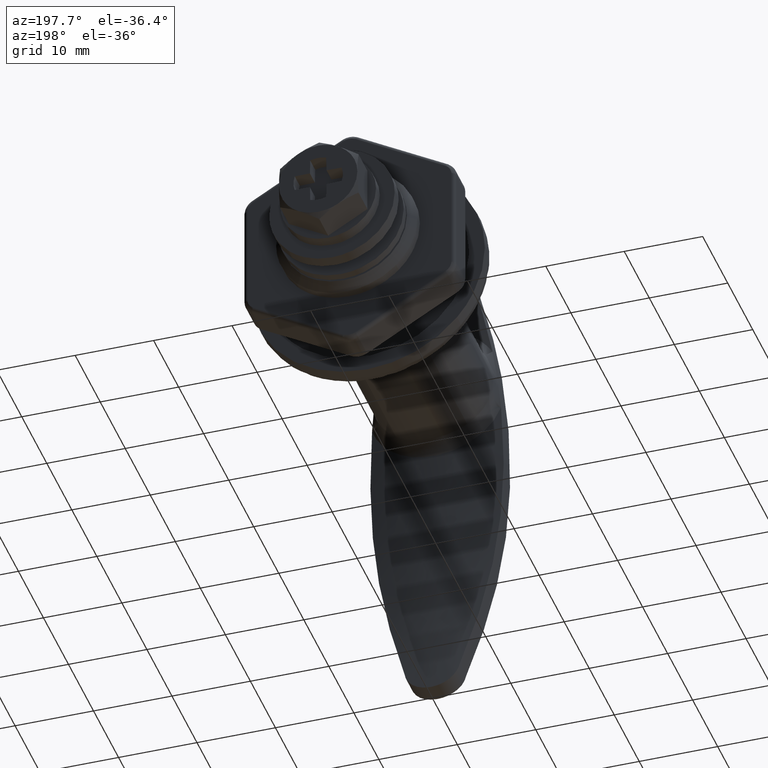
[diagram: clean part render]
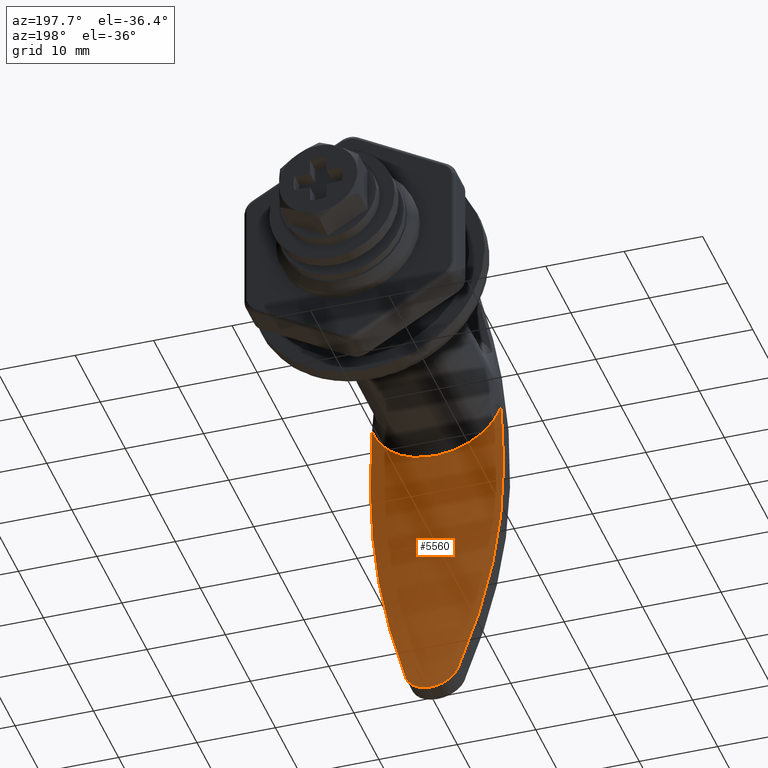
[diagram: same view with one face highlighted and labeled with its STEP entity id]
A machine part, auxiliary view. The second image highlights one B-rep face of the part: STEP entity #5560.
In plain terms, the highlighted face is a freeform B-spline surface patch.
Its self-contained STEP definition (entity closure, byte-faithful):
#4161=CARTESIAN_POINT('',(-21.699823921978400,8.227267373672110,-3.141151808530590));
#4162=VERTEX_POINT('',#4161);
#4315=CARTESIAN_POINT('',(-21.703888726724099,-8.227188666198821,-3.140055158893455));
#4316=VERTEX_POINT('',#4315);
#4554=CARTESIAN_POINT('',(-21.699823921978449,8.227267373672119,-3.141151808530590));
#4555=CARTESIAN_POINT('',(-21.680611249483061,8.073428696596453,-3.569523830428588));
#4556=CARTESIAN_POINT('',(-21.655073627499569,7.890358060154963,-3.981941489845851));
#4557=CARTESIAN_POINT('',(-21.609454813287119,7.572337257551590,-4.577939363114245));
#4558=CARTESIAN_POINT('',(-21.593029977201489,7.459079409918290,-4.772774912557951));
#4559=CARTESIAN_POINT('',(-21.566834947981441,7.278123077215131,-5.059202542891265));
#4560=CARTESIAN_POINT('',(-21.557843652998731,7.215957374652362,-5.153706440320076));
#4561=CARTESIAN_POINT('',(-21.539387414444370,7.087874633069710,-5.340743921394807));
#4562=CARTESIAN_POINT('',(-21.529933460062960,7.022032032458240,-5.433153814105079));
#4563=CARTESIAN_POINT('',(-21.481959590343351,6.685829353690933,-5.886941784512151));
#4564=CARTESIAN_POINT('',(-21.441087755556090,6.392903747375701,-6.226227293122824));
#4565=CARTESIAN_POINT('',(-21.357942809344468,5.759499834566553,-6.858130592849295));
#4566=CARTESIAN_POINT('',(-21.315655073990431,5.419035909373363,-7.150760582506216));
#4567=CARTESIAN_POINT('',(-21.253836300319659,4.870350888578264,-7.552771170237676));
#4568=CARTESIAN_POINT('',(-21.233738230702699,4.683164438559833,-7.679052094808780));
#4569=CARTESIAN_POINT('',(-21.195065192098749,4.301335143071097,-7.915810754249838));
#4570=CARTESIAN_POINT('',(-21.176471682352091,4.106531443766038,-8.026405813823857));
#4571=CARTESIAN_POINT('',(-21.123488069743289,3.510461770202969,-8.334952605737460));
#4572=CARTESIAN_POINT('',(-21.091890944644650,3.097610315888059,-8.509813970420355));
#4573=CARTESIAN_POINT('',(-21.052334767889580,2.453904704769653,-8.723752140839135));
#4574=CARTESIAN_POINT('',(-21.040435534762530,2.234548195975090,-8.787076234180903));
#4575=CARTESIAN_POINT('',(-21.019946354668448,1.794644228178466,-8.895132194883230));
#4576=CARTESIAN_POINT('',(-21.011301818593580,1.573368223340092,-8.940163657229340));
#4577=CARTESIAN_POINT('',(-20.990396401305869,0.905597319092734,-9.048517111864578));
#4578=CARTESIAN_POINT('',(-20.983166815313758,0.455176369363161,-9.085263198338812));
#4579=CARTESIAN_POINT('',(-20.983200668732909,-0.114620958827383,-9.085241595128460));
#4580=CARTESIAN_POINT('',(-20.983660704831490,-0.228498560136978,-9.082926394405213));
#4581=CARTESIAN_POINT('',(-20.985483194989222,-0.456090382754759,-9.073683643992386));
#4582=CARTESIAN_POINT('',(-20.986848661924409,-0.569968684526843,-9.066740710900231));
#4583=CARTESIAN_POINT('',(-20.992266162426748,-0.909922110330443,-9.039105181661775));
#4584=CARTESIAN_POINT('',(-20.997631461491409,-1.134266639618404,-9.011656440384197));
#4585=CARTESIAN_POINT('',(-21.018653261390710,-1.800658988386934,-8.903119574516360));
#4586=CARTESIAN_POINT('',(-21.039240046901639,-2.236101912583352,-8.795990001992360));
#4587=CARTESIAN_POINT('',(-21.078609751420210,-2.876256283869158,-8.583771643149545));
#4588=CARTESIAN_POINT('',(-21.093147161046979,-3.087463526876880,-8.504407110820393));
#4589=CARTESIAN_POINT('',(-21.116889456160798,-3.400950159079917,-8.372151619529053));
#4590=CARTESIAN_POINT('',(-21.125123775268989,-3.504834193367147,-8.325872425448457));
#4591=CARTESIAN_POINT('',(-21.142041800367181,-3.709618738741761,-8.229767729266692));
#4592=CARTESIAN_POINT('',(-21.150743202734279,-3.810758635604862,-8.179844184025482));
#4593=CARTESIAN_POINT('',(-21.195326979615661,-4.310324744495564,-7.921045012169326));
#4594=CARTESIAN_POINT('',(-21.234436967769160,-4.690460486955159,-7.684791823337654));
#4595=CARTESIAN_POINT('',(-21.295745202056580,-5.232470631985811,-7.287842384084086));
#4596=CARTESIAN_POINT('',(-21.316622480869679,-5.408420200109004,-7.148398178912236));
#4597=CARTESIAN_POINT('',(-21.358829394202939,-5.750804847900678,-6.855074141148950));
#4598=CARTESIAN_POINT('',(-21.380230749479860,-5.917751075358367,-6.700612608033075));
#4599=CARTESIAN_POINT('',(-21.443434974214021,-6.396559488059175,-6.222707696279251));
#4600=CARTESIAN_POINT('',(-21.484489520680281,-6.688738663089266,-5.883234772155790));
#4601=CARTESIAN_POINT('',(-21.561040860972891,-7.221401091460146,-5.163994385160053));
#4602=CARTESIAN_POINT('',(-21.596551381111102,-7.461878987374749,-4.784224284760697));
#4603=CARTESIAN_POINT('',(-21.643031922898579,-7.782807903253036,-4.183286591679311));
#4604=CARTESIAN_POINT('',(-21.657263650052940,-7.882248990370137,-3.979359987535965));
#4605=CARTESIAN_POINT('',(-21.682827151334699,-8.066008870111967,-3.564839650869869));
#4606=CARTESIAN_POINT('',(-21.694161032346500,-8.150335902900892,-3.354259590128284));
#4607=CARTESIAN_POINT('',(-21.703888726724099,-8.227188666198821,-3.140055158893455));
#4608=B_SPLINE_CURVE_WITH_KNOTS('',3,(#4554,#4555,#4556,#4557,#4558,#4559,#4560,#4561,#4562,#4563,#4564,#4565,#4566,#4567,#4568,#4569,#4570,#4571,#4572,#4573,#4574,#4575,#4576,#4577,#4578,#4579,#4580,#4581,#4582,#4583,#4584,#4585,#4586,#4587,#4588,#4589,#4590,#4591,#4592,#4593,#4594,#4595,#4596,#4597,#4598,#4599,#4600,#4601,#4602,#4603,#4604,#4605,#4606,#4607),.UNSPECIFIED.,.F.,.U.,(4,2,2,2,2,2,2,2,2,2,2,2,2,2,2,2,2,2,2,2,2,2,2,2,2,2,4),(0.0,0.062500000000001,0.093750000000001,0.109375000000001,0.125000000000001,0.187500000000001,0.250000000000001,0.281250000000001,0.312500000000002,0.375000000000002,0.406250000000002,0.437500000000002,0.500000000000002,0.515625000000002,0.531250000000002,0.562500000000002,0.625000000000002,0.656250000000002,0.671875000000002,0.687500000000002,0.750000000000001,0.781250000000001,0.812500000000001,0.875000000000001,0.937500000000000,0.968750000000000,1.0),.UNSPECIFIED.);
#4609=EDGE_CURVE('',#4162,#4316,#4608,.T.);
#5003=CARTESIAN_POINT('',(-19.492136319288051,0.059918407206738,-45.000099658016197));
#5004=VERTEX_POINT('',#5003);
#5005=CARTESIAN_POINT('',(-19.916182251279050,3.527651446527305,-41.974104227996548));
#5006=VERTEX_POINT('',#5005);
#5007=CARTESIAN_POINT('',(-19.492136319288051,0.059918407206738,-45.000099658016197));
#5008=CARTESIAN_POINT('',(-19.492136319288051,0.272031436848899,-45.000099658016211));
#5009=CARTESIAN_POINT('',(-19.495023170274571,0.480839681718385,-44.980978510266837));
#5010=CARTESIAN_POINT('',(-19.503206207517920,0.789315084268253,-44.924848235378008));
#5011=CARTESIAN_POINT('',(-19.506574410541749,0.891345832255992,-44.901534235810892));
#5012=CARTESIAN_POINT('',(-19.512531228179721,1.043184502650775,-44.859555464748851));
#5013=CARTESIAN_POINT('',(-19.514667710293519,1.093595850866269,-44.844392823605837));
#5014=CARTESIAN_POINT('',(-19.519235707714309,1.194009002450185,-44.811688947830589));
#5015=CARTESIAN_POINT('',(-19.521671602027499,1.244081921335422,-44.794114897214598));
#5016=CARTESIAN_POINT('',(-19.534444019921740,1.490928817435897,-44.701151338635583));
#5017=CARTESIAN_POINT('',(-19.546584373115369,1.679084105341896,-44.610065913855131));
#5018=CARTESIAN_POINT('',(-19.567471599135640,1.947777211197535,-44.449145974892218));
#5019=CARTESIAN_POINT('',(-19.574890444984629,2.035070582167876,-44.391432580268990));
#5020=CARTESIAN_POINT('',(-19.590745432415229,2.205017183206248,-44.267694035110360));
#5021=CARTESIAN_POINT('',(-19.599212477902910,2.287873417402480,-44.201432295260503));
#5022=CARTESIAN_POINT('',(-19.625884655984589,2.524556076851055,-43.994002053050153));
#5023=CARTESIAN_POINT('',(-19.645489865946800,2.668204704765957,-43.843216648639142));
#5024=CARTESIAN_POINT('',(-19.678712928835392,2.862840784170648,-43.598771309146592));
#5025=CARTESIAN_POINT('',(-19.690426792260499,2.924226607716851,-43.514227399908911));
#5026=CARTESIAN_POINT('',(-19.709067954510939,3.010929987905767,-43.382710614531170));
#5027=CARTESIAN_POINT('',(-19.715464661104800,3.038945057814815,-43.338054627492937));
#5028=CARTESIAN_POINT('',(-19.728487095043661,3.092619040071872,-43.248069900196981));
#5029=CARTESIAN_POINT('',(-19.735128122023749,3.118352629582722,-43.202632526323640));
#5030=CARTESIAN_POINT('',(-19.768946878377790,3.241602582948890,-42.973256993923030));
#5031=CARTESIAN_POINT('',(-19.798089127593389,3.322993604337147,-42.782825417538078));
#5032=CARTESIAN_POINT('',(-19.842853883914952,3.419600292859991,-42.486611713538728));
#5033=CARTESIAN_POINT('',(-19.857939173483899,3.447554067674552,-42.385997399609103));
#5034=CARTESIAN_POINT('',(-19.887710365933081,3.494546151407000,-42.181429538321566));
#5035=CARTESIAN_POINT('',(-19.902278178042138,3.513417446075440,-42.078243417612732));
#5036=CARTESIAN_POINT('',(-19.916182251279050,3.527651446527305,-41.974104227996548));
#5037=B_SPLINE_CURVE_WITH_KNOTS('',3,(#5007,#5008,#5009,#5010,#5011,#5012,#5013,#5014,#5015,#5016,#5017,#5018,#5019,#5020,#5021,#5022,#5023,#5024,#5025,#5026,#5027,#5028,#5029,#5030,#5031,#5032,#5033,#5034,#5035,#5036),.UNSPECIFIED.,.F.,.U.,(4,2,2,2,2,2,2,2,2,2,2,2,2,2,4),(0.0,0.124999999999995,0.187499999999992,0.218749999999991,0.249999999999990,0.374999999999987,0.437499999999986,0.499999999999984,0.624999999999980,0.687499999999979,0.718749999999980,0.749999999999980,0.874999999999992,0.937499999999996,1.0),.UNSPECIFIED.);
#5038=EDGE_CURVE('',#5004,#5006,#5037,.T.);
#5141=CARTESIAN_POINT('',(-19.492136319288051,-0.059918407196244,-45.000099658016197));
#5142=VERTEX_POINT('',#5141);
#5148=CARTESIAN_POINT('',(-19.916182070984949,-3.527651446522955,-41.974104228028352));
#5149=VERTEX_POINT('',#5148);
#5150=CARTESIAN_POINT('',(-19.916182070984949,-3.527651446522960,-41.974104228028352));
#5151=CARTESIAN_POINT('',(-19.888364039138601,-3.499173398330393,-42.182456115525532));
#5152=CARTESIAN_POINT('',(-19.858239839454601,-3.452574132737543,-42.384756097371152));
#5153=CARTESIAN_POINT('',(-19.813619617827520,-3.356622867352249,-42.680077344371760));
#5154=CARTESIAN_POINT('',(-19.798830866857319,-3.320265857741503,-42.777151711989042));
#5155=CARTESIAN_POINT('',(-19.777120248826201,-3.259048691339734,-42.920726718292407));
#5156=CARTESIAN_POINT('',(-19.769960688856980,-3.237527620920044,-42.968244869199047));
#5157=CARTESIAN_POINT('',(-19.755836130065340,-3.192212987299933,-43.062593511400173));
#5158=CARTESIAN_POINT('',(-19.748854576412679,-3.168355465879036,-43.109537143052137));
#5159=CARTESIAN_POINT('',(-19.714793091136489,-3.044335112735298,-43.340529981852171));
#5160=CARTESIAN_POINT('',(-19.690217295390859,-2.929856817160826,-43.514210126205363));
#5161=CARTESIAN_POINT('',(-19.657003629552062,-2.735844281131220,-43.758459209773811));
#5162=CARTESIAN_POINT('',(-19.646525289591111,-2.667436520418876,-43.837145722299702));
#5163=CARTESIAN_POINT('',(-19.631577198524461,-2.559101678477446,-43.950975445962470));
#5164=CARTESIAN_POINT('',(-19.626722558082591,-2.522034835338196,-43.988217629598772));
#5165=CARTESIAN_POINT('',(-19.617249322046611,-2.445953403278354,-44.061269043696683));
#5166=CARTESIAN_POINT('',(-19.612641897203019,-2.407019548809334,-44.096992142991951));
#5167=CARTESIAN_POINT('',(-19.590362347126149,-2.209434759024830,-44.270254335606403));
#5168=CARTESIAN_POINT('',(-19.574732679494449,-2.040754356450213,-44.393176878299187));
#5169=CARTESIAN_POINT('',(-19.553803985365210,-1.772165971979697,-44.554457795294333));
#5170=CARTESIAN_POINT('',(-19.547258742497210,-1.680026052466746,-44.604345312041573));
#5171=CARTESIAN_POINT('',(-19.538094987975679,-1.537796744229523,-44.673212264698464));
#5172=CARTESIAN_POINT('',(-19.535143271991910,-1.489594857547685,-44.695223001489381));
#5173=CARTESIAN_POINT('',(-19.529505471550468,-1.392457866076785,-44.736938807441753));
#5174=CARTESIAN_POINT('',(-19.526822217702431,-1.343586609341421,-44.756624289626913));
#5175=CARTESIAN_POINT('',(-19.514091683564988,-1.097742533493865,-44.849293027380163));
#5176=CARTESIAN_POINT('',(-19.506078012898740,-0.896342392642829,-44.905138834994489));
#5177=CARTESIAN_POINT('',(-19.497828843050460,-0.587203725997328,-44.961738635641531));
#5178=CARTESIAN_POINT('',(-19.495712405326369,-0.482977426057533,-44.976050194231128));
#5179=CARTESIAN_POINT('',(-19.492860365016579,-0.272085370605094,-44.995267231985437));
#5180=CARTESIAN_POINT('',(-19.492136319288051,-0.166001076424936,-45.000099658016211));
#5181=CARTESIAN_POINT('',(-19.492136319288051,-0.059918407196244,-45.000099658016197));
#5182=B_SPLINE_CURVE_WITH_KNOTS('',3,(#5150,#5151,#5152,#5153,#5154,#5155,#5156,#5157,#5158,#5159,#5160,#5161,#5162,#5163,#5164,#5165,#5166,#5167,#5168,#5169,#5170,#5171,#5172,#5173,#5174,#5175,#5176,#5177,#5178,#5179,#5180,#5181),.UNSPECIFIED.,.F.,.U.,(4,2,2,2,2,2,2,2,2,2,2,2,2,2,2,4),(0.0,0.125000000000003,0.187500000000003,0.218750000000004,0.250000000000006,0.375000000000004,0.437500000000004,0.468750000000003,0.500000000000003,0.625000000000003,0.687500000000004,0.718750000000004,0.750000000000004,0.875000000000002,0.937500000000001,1.0),.UNSPECIFIED.);
#5183=EDGE_CURVE('',#5149,#5142,#5182,.T.);
#5463=CARTESIAN_POINT('',(-21.699823921978400,8.227267373672110,-3.141151808530590));
#5464=CARTESIAN_POINT('',(-21.805885002986699,8.406043279805147,-5.632258728276281));
#5465=CARTESIAN_POINT('',(-21.994836567394270,8.674811757897412,-13.028888411518411));
#5466=CARTESIAN_POINT('',(-21.711658832109102,7.904620147357620,-24.445709925409901));
#5467=CARTESIAN_POINT('',(-20.851672629883101,5.694440284739700,-34.441149037106349));
#5468=CARTESIAN_POINT('',(-20.194683638603351,4.194723965619880,-39.863768447673152));
#5469=CARTESIAN_POINT('',(-19.994867854429369,3.629047319648921,-41.382919528088379));
#5470=CARTESIAN_POINT('',(-19.933642963830469,3.545526481138530,-41.843326403092803));
#5471=CARTESIAN_POINT('',(-19.916182251279061,3.527651446527306,-41.974104227996548));
#5472=B_SPLINE_CURVE_WITH_KNOTS('',3,(#5463,#5464,#5465,#5466,#5467,#5468,#5469,#5470,#5471),.UNSPECIFIED.,.F.,.U.,(4,1,1,1,1,1,4),(0.355836555013322,0.470929599459215,0.697667441982932,0.883513564293831,0.932384456043438,0.947543075388542,0.953553047188240),.UNSPECIFIED.);
#5473=EDGE_CURVE('',#4162,#5006,#5472,.T.);
#5496=CARTESIAN_POINT('',(-21.605551769884801,-8.056496570110978,-1.050547352593680));
#5497=CARTESIAN_POINT('',(-20.549825668733121,-2.737502893064804,-1.050547352593679));
#5498=CARTESIAN_POINT('',(-20.548230744687071,2.736897299313591,-1.050547352593679));
#5499=CARTESIAN_POINT('',(-21.600854839535749,8.056496570110943,-1.050547352593680));
#5500=CARTESIAN_POINT('',(-21.771279868339079,-8.348608515500525,-4.239020018584036));
#5501=CARTESIAN_POINT('',(-20.633209951295239,-2.840990528138666,-4.239020018584037));
#5502=CARTESIAN_POINT('',(-20.631753560965329,2.840437535734217,-4.239020018584037));
#5503=CARTESIAN_POINT('',(-21.766990909277009,8.348608515500491,-4.239020018584036));
#5504=CARTESIAN_POINT('',(-22.008970225667820,-8.721801323437658,-12.332345531216911));
#5505=CARTESIAN_POINT('',(-20.757077608945671,-2.974478492301181,-12.332345531216911));
#5506=CARTESIAN_POINT('',(-20.758144896139900,2.974883741978992,-12.332345531216911));
#5507=CARTESIAN_POINT('',(-22.012113305506780,8.721801323437758,-12.332345531216911));
#5508=CARTESIAN_POINT('',(-21.712491479204701,-7.904620147357551,-24.445709925409901));
#5509=CARTESIAN_POINT('',(-20.609302501464398,-2.693342784993015,-24.445709925409901));
#5510=CARTESIAN_POINT('',(-20.609019761722450,2.693235428519935,-24.445709925409901));
#5511=CARTESIAN_POINT('',(-21.711658832109102,7.904620147357620,-24.445709925409901));
#5512=CARTESIAN_POINT('',(-20.851623193472651,-5.694440284739771,-34.441149037106349));
#5513=CARTESIAN_POINT('',(-20.164883923269450,-1.927035201248420,-34.441149037106349));
#5514=CARTESIAN_POINT('',(-20.164900710258848,1.927041575279300,-34.441149037106349));
#5515=CARTESIAN_POINT('',(-20.851672629883101,5.694440284739700,-34.441149037106349));
#5516=CARTESIAN_POINT('',(-20.194685120626652,-4.194723965619890,-39.863768447673152));
#5517=CARTESIAN_POINT('',(-19.848347318994900,-1.409131301376524,-39.863768447673152));
#5518=CARTESIAN_POINT('',(-19.848346815748201,1.409131110293620,-39.863768447673152));
#5519=CARTESIAN_POINT('',(-20.194683638603351,4.194723965619880,-39.863768447673152));
#5520=CARTESIAN_POINT('',(-19.862362783566251,-3.253929124980885,-42.390316978154949));
#5521=CARTESIAN_POINT('',(-19.667111993185749,-1.088152244694204,-42.390316978154949));
#5522=CARTESIAN_POINT('',(-19.667112286025599,1.088152355885282,-42.390316978154949));
#5523=CARTESIAN_POINT('',(-19.862363645957299,3.253929124980890,-42.390316978154949));
#5524=CARTESIAN_POINT('',(-19.660964852562302,-3.600003945479100,-43.869765651152200));
#5525=CARTESIAN_POINT('',(-19.660967078550598,-1.200001275147854,-43.869765651152200));
#5526=CARTESIAN_POINT('',(-19.660967078550598,1.200001275151408,-43.869765651152200));
#5527=CARTESIAN_POINT('',(-19.660964852562302,3.600003945479100,-43.869765651152200));
#5528=CARTESIAN_POINT('',(-19.492141280987649,-3.600000000000000,-45.000066438678900));
#5529=CARTESIAN_POINT('',(-19.492141280987649,-1.200000000000000,-45.000066438678900));
#5530=CARTESIAN_POINT('',(-19.492141280987649,1.200000000000000,-45.000066438678900));
#5531=CARTESIAN_POINT('',(-19.492141280987649,3.600000000000000,-45.000066438678900));
#5532=CARTESIAN_POINT('',(-19.492136319288051,-3.600000000000000,-45.000099658016197));
#5533=CARTESIAN_POINT('',(-19.492136319288051,-1.200000000000000,-45.000099658016197));
#5534=CARTESIAN_POINT('',(-19.492136319288051,1.200000000000000,-45.000099658016197));
#5535=CARTESIAN_POINT('',(-19.492136319288051,3.600000000000000,-45.000099658016197));
#5536=B_SPLINE_SURFACE_WITH_KNOTS('',3,3,((#5496,#5500,#5504,#5508,#5512,#5516,#5520,#5524,#5528,#5532),(#5497,#5501,#5505,#5509,#5513,#5517,#5521,#5525,#5529,#5533),(#5498,#5502,#5506,#5510,#5514,#5518,#5522,#5526,#5530,#5534),(#5499,#5503,#5507,#5511,#5515,#5519,#5523,#5527,#5531,#5535)),.UNSPECIFIED.,.F.,.F.,.U.,(4,4),(4,1,1,1,1,1,1,4),(0.0,17.176083972474320),(22.317627950572970,32.474164808657683,48.109457376655087,60.924955939294847,64.294974292027959,65.340275975018145,68.957472158367992,68.957578470219133),.UNSPECIFIED.);
#5537=ORIENTED_EDGE('',*,*,#5473,.F.);
#5538=ORIENTED_EDGE('',*,*,#4609,.T.);
#5539=CARTESIAN_POINT('',(-21.703888726724099,-8.227188666198821,-3.140055158893455));
#5540=CARTESIAN_POINT('',(-21.808951215128669,-8.406016719625528,-5.631527831731115));
#5541=CARTESIAN_POINT('',(-21.991931043405419,-8.674836408863689,-13.028523001561471));
#5542=CARTESIAN_POINT('',(-21.712491479204701,-7.904620147357551,-24.445709925409901));
#5543=CARTESIAN_POINT('',(-20.851623193472651,-5.694440284739771,-34.441149037106349));
#5544=CARTESIAN_POINT('',(-20.194685120626652,-4.194723965619890,-39.863768447673152));
#5545=CARTESIAN_POINT('',(-19.994867926812979,-3.629047319644988,-41.382919528098952));
#5546=CARTESIAN_POINT('',(-19.933642828081830,-3.545526481134687,-41.843326403113977));
#5547=CARTESIAN_POINT('',(-19.916182070984949,-3.527651446522960,-41.974104228028352));
#5548=B_SPLINE_CURVE_WITH_KNOTS('',3,(#5539,#5540,#5541,#5542,#5543,#5544,#5545,#5546,#5547),.UNSPECIFIED.,.F.,.U.,(4,1,1,1,1,1,4),(0.355819666036561,0.470929599459215,0.697667441982932,0.883513564293831,0.932384456043438,0.947543075388542,0.953553047188727),.UNSPECIFIED.);
#5549=EDGE_CURVE('',#4316,#5149,#5548,.T.);
#5550=ORIENTED_EDGE('',*,*,#5549,.T.);
#5551=ORIENTED_EDGE('',*,*,#5183,.T.);
#5552=CARTESIAN_POINT('',(-19.492136319288051,-0.059918407196244,-45.000099658016197));
#5553=CARTESIAN_POINT('',(-19.492136319288051,0.059918407206738,-45.000099658016197));
#5554=QUASI_UNIFORM_CURVE('',1,(#5552,#5553),.UNSPECIFIED.,.F.,.U.);
#5555=EDGE_CURVE('',#5142,#5004,#5554,.T.);
#5556=ORIENTED_EDGE('',*,*,#5555,.T.);
#5557=ORIENTED_EDGE('',*,*,#5038,.T.);
#5558=EDGE_LOOP('',(#5537,#5538,#5550,#5551,#5556,#5557));
#5559=FACE_OUTER_BOUND('',#5558,.T.);
#5560=ADVANCED_FACE('',(#5559),#5536,.F.);